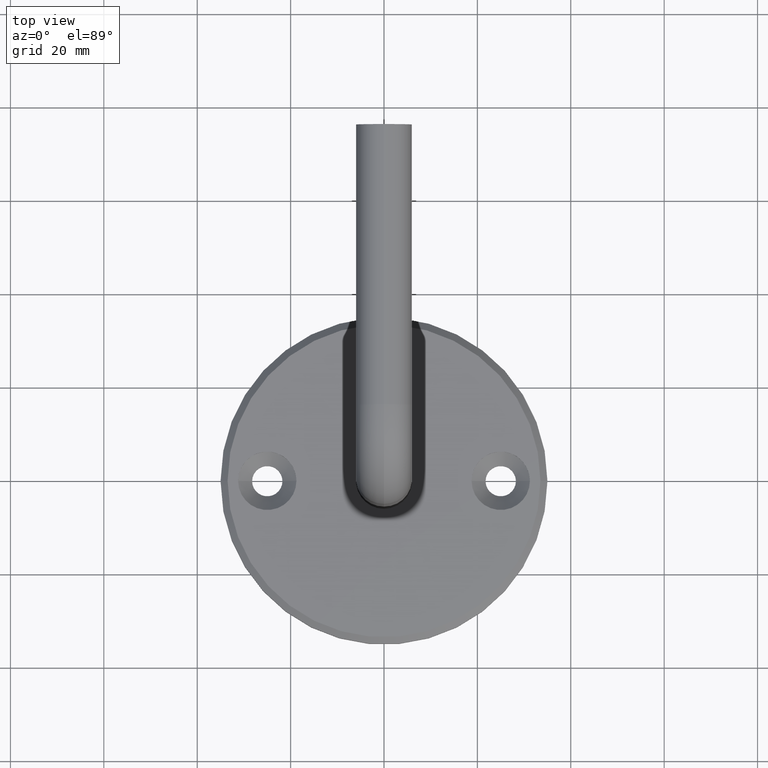
[diagram: clean part render]
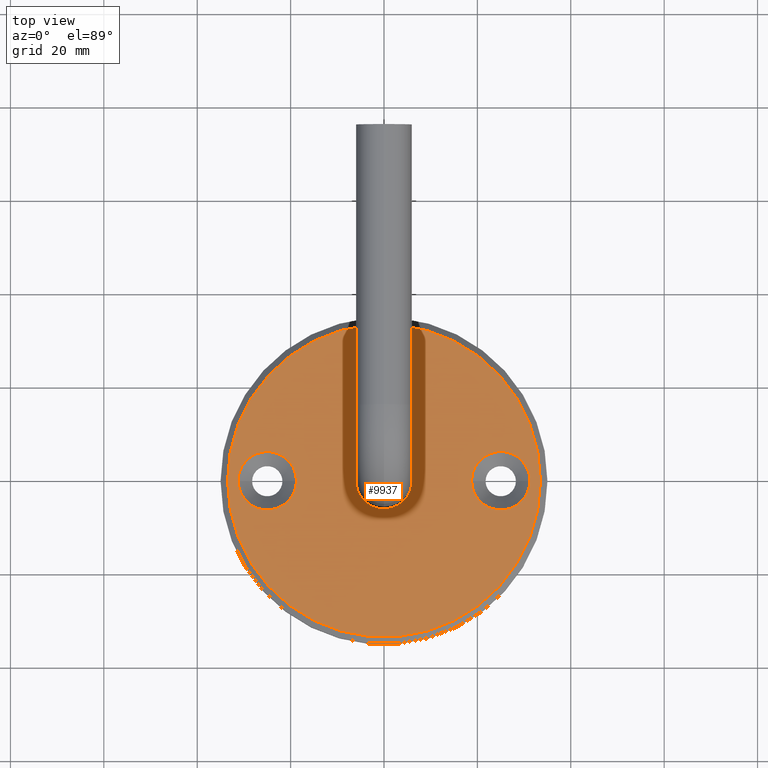
[diagram: same view with one face highlighted and labeled with its STEP entity id]
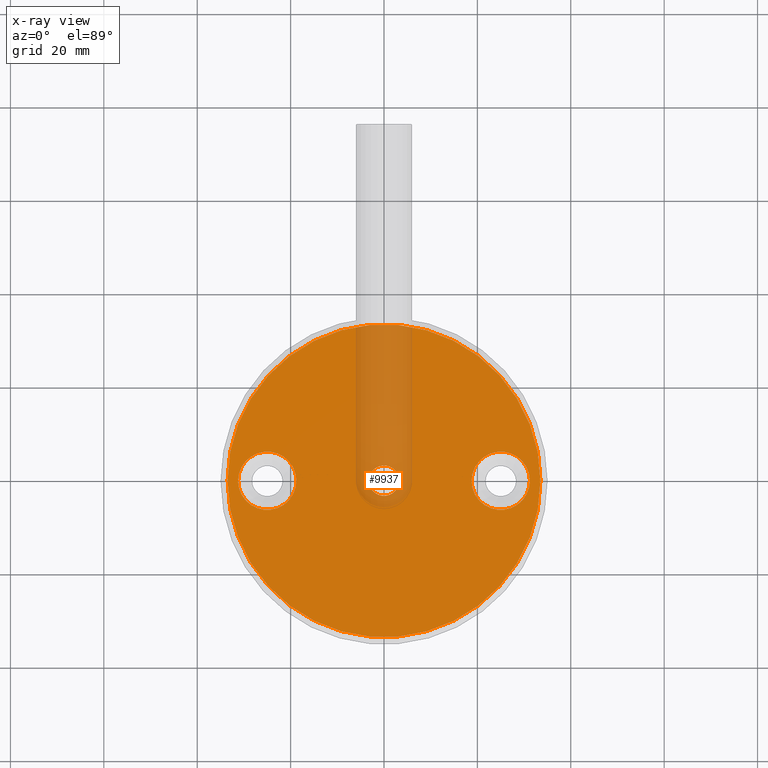
[diagram: x-ray of the same camera — body ghosted, the highlighted face saturated]
A machine part, top view. The second image highlights one B-rep face of the part: STEP entity #9937.
The next image is the same camera in x-ray: the body ghosted, the highlighted face saturated — about 13% of this face is hidden behind the body in this view.
In plain terms, the highlighted planar face has unit normal (0, 0, 1).
Its self-contained STEP definition (entity closure, byte-faithful):
#70 = FACE_BOUND ( 'NONE', #13248, .T. ) ;
#105 = CARTESIAN_POINT ( 'NONE',  ( 0.000000000000000000, 0.000000000000000000, 6.000000000000000000 ) ) ;
#433 = DIRECTION ( 'NONE',  ( 1.000000000000000000, 0.000000000000000000, 0.000000000000000000 ) ) ;
#653 = ORIENTED_EDGE ( 'NONE', *, *, #10391, .F. ) ;
#695 = EDGE_CURVE ( 'NONE', #9155, #11890, #1481, .T. ) ;
#1400 = CARTESIAN_POINT ( 'NONE',  ( 18.75000000000000355, 7.654042494670955634E-16, 6.000000000000001776 ) ) ;
#1415 = CIRCLE ( 'NONE', #11084, 6.249999999999998224 ) ;
#1481 = CIRCLE ( 'NONE', #12178, 3.249999999999998224 ) ;
#1911 = ORIENTED_EDGE ( 'NONE', *, *, #10894, .F. ) ;
#2111 = DIRECTION ( 'NONE',  ( 0.000000000000000000, 0.000000000000000000, 1.000000000000000000 ) ) ;
#2215 = AXIS2_PLACEMENT_3D ( 'NONE', #13726, #7642, #10035 ) ;
#2314 = VERTEX_POINT ( 'NONE', #3490 ) ;
#2459 = PLANE ( 'NONE',  #2946 ) ;
#2823 = VERTEX_POINT ( 'NONE', #5919 ) ;
#2946 = AXIS2_PLACEMENT_3D ( 'NONE', #105, #6288, #4897 ) ;
#3241 = ORIENTED_EDGE ( 'NONE', *, *, #695, .F. ) ;
#3462 = CARTESIAN_POINT ( 'NONE',  ( -31.25000000000000000, 7.654042494670955634E-16, 6.000000000000001776 ) ) ;
#3490 = CARTESIAN_POINT ( 'NONE',  ( -18.75000000000000355, 0.000000000000000000, 6.000000000000001776 ) ) ;
#3533 = CIRCLE ( 'NONE', #13358, 3.249999999999998224 ) ;
#3758 = VERTEX_POINT ( 'NONE', #12869 ) ;
#3790 = AXIS2_PLACEMENT_3D ( 'NONE', #9637, #2111, #5918 ) ;
#3909 = DIRECTION ( 'NONE',  ( 1.000000000000000000, 0.000000000000000000, 0.000000000000000000 ) ) ;
#3964 = CARTESIAN_POINT ( 'NONE',  ( 3.249999999999998224, 3.980102097228895766E-16, 6.000000000000000000 ) ) ;
#4113 = DIRECTION ( 'NONE',  ( 1.000000000000000000, 0.000000000000000000, 0.000000000000000000 ) ) ;
#4313 = CARTESIAN_POINT ( 'NONE',  ( -3.249999999999998224, 0.000000000000000000, 6.000000000000000000 ) ) ;
#4321 = CIRCLE ( 'NONE', #12734, 6.249999999999998224 ) ;
#4358 = DIRECTION ( 'NONE',  ( -0.000000000000000000, -0.000000000000000000, 1.000000000000000000 ) ) ;
#4394 = ORIENTED_EDGE ( 'NONE', *, *, #15584, .T. ) ;
#4466 = VERTEX_POINT ( 'NONE', #3462 ) ;
#4714 = VERTEX_POINT ( 'NONE', #1400 ) ;
#4897 = DIRECTION ( 'NONE',  ( 1.000000000000000000, 0.000000000000000000, -0.000000000000000000 ) ) ;
#5089 = CIRCLE ( 'NONE', #2215, 6.249999999999998224 ) ;
#5382 = ORIENTED_EDGE ( 'NONE', *, *, #13312, .T. ) ;
#5918 = DIRECTION ( 'NONE',  ( 1.000000000000000000, 0.000000000000000000, 0.000000000000000000 ) ) ;
#5919 = CARTESIAN_POINT ( 'NONE',  ( 31.25000000000000000, 0.000000000000000000, 6.000000000000001776 ) ) ;
#6288 = DIRECTION ( 'NONE',  ( 0.000000000000000000, 0.000000000000000000, 1.000000000000000000 ) ) ;
#6399 = CARTESIAN_POINT ( 'NONE',  ( 0.000000000000000000, 0.000000000000000000, 6.000000000000000000 ) ) ;
#6421 = DIRECTION ( 'NONE',  ( 0.000000000000000000, 0.000000000000000000, 1.000000000000000000 ) ) ;
#6423 = FACE_BOUND ( 'NONE', #12975, .T. ) ;
#6523 = ORIENTED_EDGE ( 'NONE', *, *, #15945, .F. ) ;
#6720 = EDGE_LOOP ( 'NONE', ( #15747, #1911 ) ) ;
#7320 = EDGE_LOOP ( 'NONE', ( #5382, #4394 ) ) ;
#7641 = DIRECTION ( 'NONE',  ( 1.000000000000000000, 0.000000000000000000, 0.000000000000000000 ) ) ;
#7642 = DIRECTION ( 'NONE',  ( -0.000000000000000000, -0.000000000000000000, 1.000000000000000000 ) ) ;
#7999 = DIRECTION ( 'NONE',  ( 1.000000000000000000, 0.000000000000000000, 0.000000000000000000 ) ) ;
#8339 = CIRCLE ( 'NONE', #8800, 33.50000000000002842 ) ;
#8354 = CIRCLE ( 'NONE', #11117, 6.249999999999998224 ) ;
#8740 = VERTEX_POINT ( 'NONE', #12690 ) ;
#8800 = AXIS2_PLACEMENT_3D ( 'NONE', #6399, #15027, #433 ) ;
#8845 = CARTESIAN_POINT ( 'NONE',  ( 0.000000000000000000, 0.000000000000000000, 6.000000000000000000 ) ) ;
#8938 = CIRCLE ( 'NONE', #3790, 33.50000000000002842 ) ;
#9155 = VERTEX_POINT ( 'NONE', #3964 ) ;
#9637 = CARTESIAN_POINT ( 'NONE',  ( 0.000000000000000000, 0.000000000000000000, 6.000000000000000000 ) ) ;
#9937 = ADVANCED_FACE ( 'NONE', ( #6423, #70, #14512, #11444 ), #2459, .T. ) ;
#10035 = DIRECTION ( 'NONE',  ( 1.000000000000000000, 0.000000000000000000, 0.000000000000000000 ) ) ;
#10391 = EDGE_CURVE ( 'NONE', #11890, #9155, #3533, .T. ) ;
#10894 = EDGE_CURVE ( 'NONE', #4714, #2823, #8354, .T. ) ;
#10930 = ORIENTED_EDGE ( 'NONE', *, *, #15830, .F. ) ;
#11084 = AXIS2_PLACEMENT_3D ( 'NONE', #12853, #4358, #7999 ) ;
#11117 = AXIS2_PLACEMENT_3D ( 'NONE', #12709, #11488, #4113 ) ;
#11444 = FACE_OUTER_BOUND ( 'NONE', #7320, .T. ) ;
#11488 = DIRECTION ( 'NONE',  ( -0.000000000000000000, -0.000000000000000000, 1.000000000000000000 ) ) ;
#11890 = VERTEX_POINT ( 'NONE', #4313 ) ;
#12178 = AXIS2_PLACEMENT_3D ( 'NONE', #12444, #6421, #7641 ) ;
#12444 = CARTESIAN_POINT ( 'NONE',  ( 0.000000000000000000, 0.000000000000000000, 6.000000000000000000 ) ) ;
#12571 = DIRECTION ( 'NONE',  ( 0.000000000000000000, 0.000000000000000000, 1.000000000000000000 ) ) ;
#12690 = CARTESIAN_POINT ( 'NONE',  ( -33.50000000000002842, 0.000000000000000000, 6.000000000000000000 ) ) ;
#12709 = CARTESIAN_POINT ( 'NONE',  ( 25.00000000000000000, 0.000000000000000000, 6.000000000000001776 ) ) ;
#12734 = AXIS2_PLACEMENT_3D ( 'NONE', #14739, #15833, #13433 ) ;
#12853 = CARTESIAN_POINT ( 'NONE',  ( -25.00000000000000000, 0.000000000000000000, 6.000000000000001776 ) ) ;
#12869 = CARTESIAN_POINT ( 'NONE',  ( 33.50000000000002842, 4.194415287079687502E-15, 6.000000000000000000 ) ) ;
#12975 = EDGE_LOOP ( 'NONE', ( #653, #3241 ) ) ;
#13248 = EDGE_LOOP ( 'NONE', ( #10930, #6523 ) ) ;
#13312 = EDGE_CURVE ( 'NONE', #8740, #3758, #8938, .T. ) ;
#13358 = AXIS2_PLACEMENT_3D ( 'NONE', #8845, #12571, #3909 ) ;
#13433 = DIRECTION ( 'NONE',  ( 1.000000000000000000, 0.000000000000000000, 0.000000000000000000 ) ) ;
#13726 = CARTESIAN_POINT ( 'NONE',  ( 25.00000000000000000, 0.000000000000000000, 6.000000000000001776 ) ) ;
#14512 = FACE_BOUND ( 'NONE', #6720, .T. ) ;
#14739 = CARTESIAN_POINT ( 'NONE',  ( -25.00000000000000000, 0.000000000000000000, 6.000000000000001776 ) ) ;
#15027 = DIRECTION ( 'NONE',  ( 0.000000000000000000, 0.000000000000000000, 1.000000000000000000 ) ) ;
#15159 = EDGE_CURVE ( 'NONE', #2823, #4714, #5089, .T. ) ;
#15584 = EDGE_CURVE ( 'NONE', #3758, #8740, #8339, .T. ) ;
#15747 = ORIENTED_EDGE ( 'NONE', *, *, #15159, .F. ) ;
#15830 = EDGE_CURVE ( 'NONE', #2314, #4466, #1415, .T. ) ;
#15833 = DIRECTION ( 'NONE',  ( -0.000000000000000000, -0.000000000000000000, 1.000000000000000000 ) ) ;
#15945 = EDGE_CURVE ( 'NONE', #4466, #2314, #4321, .T. ) ;